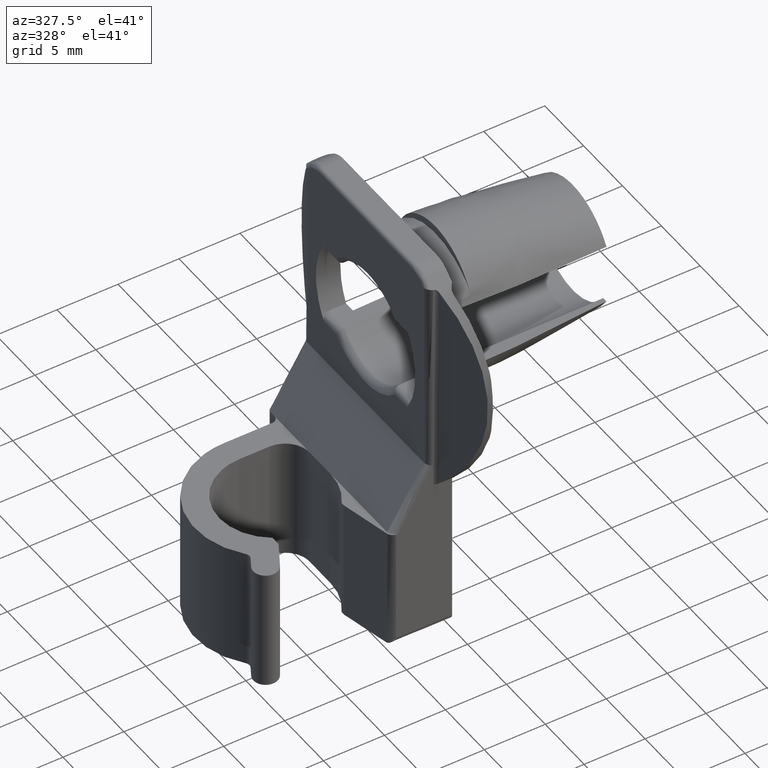
[diagram: clean part render]
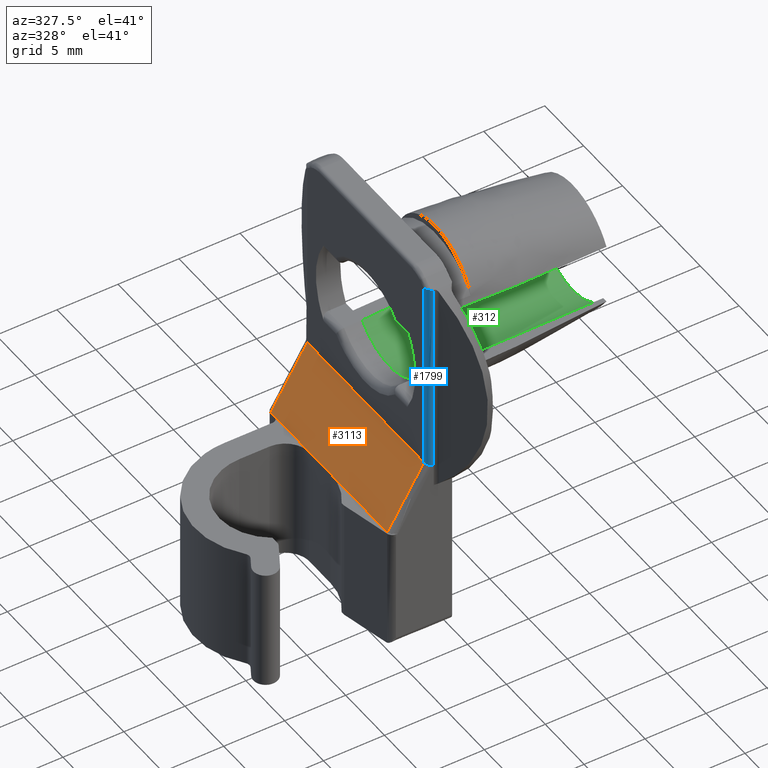
[diagram: same view with three faces highlighted in distinct colors, each labeled with its STEP entity id]
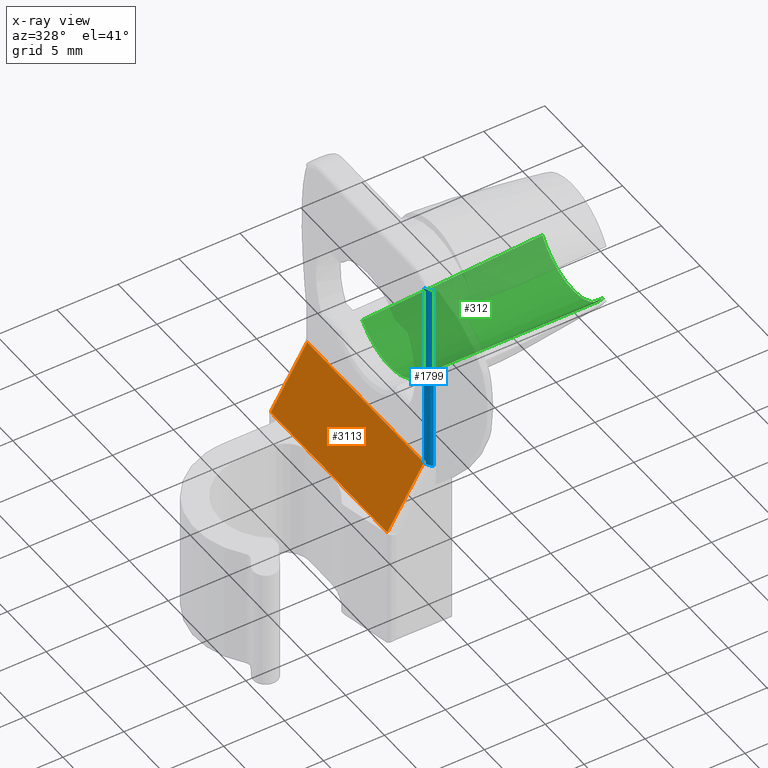
[diagram: x-ray of the same camera — body ghosted, the three highlighted faces saturated]
A machine part, auxiliary view with three faces highlighted in distinct colors.
The next image is the same camera in x-ray (body ghosted, the three faces saturated) — at least one of them is partly hidden behind the body in this view.
Their STEP definitions:

[orange] entity #3113 — the highlighted face is a freeform B-spline surface patch.
#1770=CARTESIAN_POINT('',(-2.0,-7.500000000000000,-7.0));
#1771=VERTEX_POINT('',#1770);
#2759=CARTESIAN_POINT('',(-4.999999000000000,-7.500000000000000,-12.000002000000000));
#2760=VERTEX_POINT('',#2759);
#2761=CARTESIAN_POINT('',(-4.999999000000000,-7.500000000000000,-12.000002000000000));
#2762=CARTESIAN_POINT('',(-2.0,-7.500000000000000,-7.0));
#2763=QUASI_UNIFORM_CURVE('',1,(#2761,#2762),.UNSPECIFIED.,.F.,.U.);
#2764=EDGE_CURVE('',#2760,#1771,#2763,.T.);
#2838=CARTESIAN_POINT('',(-4.999999000000000,7.500002000000000,-12.000002000000000));
#2839=VERTEX_POINT('',#2838);
#2847=CARTESIAN_POINT('',(-2.0,7.500002000000000,-7.0));
#2848=VERTEX_POINT('',#2847);
#2849=CARTESIAN_POINT('',(-2.0,7.500002000000000,-7.0));
#2850=CARTESIAN_POINT('',(-4.999999000000000,7.500002000000000,-12.000002000000000));
#2851=QUASI_UNIFORM_CURVE('',1,(#2849,#2850),.UNSPECIFIED.,.F.,.U.);
#2852=EDGE_CURVE('',#2848,#2839,#2851,.T.);
#3073=CARTESIAN_POINT('',(-5.149848916073576,-8.249250070827085,-12.249752043272579));
#3074=CARTESIAN_POINT('',(-1.850149976638106,-8.249250070827085,-6.750249777913407));
#3075=CARTESIAN_POINT('',(-5.149848916073576,8.249252473158492,-12.249752043272579));
#3076=CARTESIAN_POINT('',(-1.850149976638106,8.249252473158492,-6.750249777913407));
#3077=B_SPLINE_SURFACE_WITH_KNOTS('',1,1,((#3073,#3075),(#3074,#3076)),.UNSPECIFIED.,.F.,.F.,.U.,(2,2),(2,2),(0.0,6.413465386014200),(0.0,16.498502543985580),.UNSPECIFIED.);
#3078=CARTESIAN_POINT('',(-4.999999000000000,-0.231143668836476,-12.000002000000000));
#3079=VERTEX_POINT('',#3078);
#3080=CARTESIAN_POINT('',(-4.999999000000000,-7.500000000000000,-12.000002000000000));
#3081=CARTESIAN_POINT('',(-4.999999000000000,-0.231143668836476,-12.000002000000000));
#3082=QUASI_UNIFORM_CURVE('',1,(#3080,#3081),.UNSPECIFIED.,.F.,.U.);
#3083=EDGE_CURVE('',#2760,#3079,#3082,.T.);
#3084=ORIENTED_EDGE('',*,*,#3083,.F.);
#3085=ORIENTED_EDGE('',*,*,#2764,.T.);
#3086=CARTESIAN_POINT('',(-2.0,-7.500000000000000,-7.0));
#3087=CARTESIAN_POINT('',(-2.0,7.500002000000000,-7.0));
#3088=QUASI_UNIFORM_CURVE('',1,(#3086,#3087),.UNSPECIFIED.,.F.,.U.);
#3089=EDGE_CURVE('',#1771,#2848,#3088,.T.);
#3090=ORIENTED_EDGE('',*,*,#3089,.T.);
#3091=ORIENTED_EDGE('',*,*,#2852,.T.);
#3092=CARTESIAN_POINT('',(-4.999999000000000,6.990102990150830,-12.000001999999959));
#3093=VERTEX_POINT('',#3092);
#3094=CARTESIAN_POINT('',(-4.999999000000000,6.990102990150830,-12.000001999999959));
#3095=CARTESIAN_POINT('',(-4.999999000000000,7.500002000000000,-12.000002000000000));
#3096=QUASI_UNIFORM_CURVE('',1,(#3094,#3095),.UNSPECIFIED.,.F.,.U.);
#3097=EDGE_CURVE('',#3093,#2839,#3096,.T.);
#3098=ORIENTED_EDGE('',*,*,#3097,.F.);
#3099=CARTESIAN_POINT('',(-4.999999000000000,2.519798747344205,-12.000002000000000));
#3100=VERTEX_POINT('',#3099);
#3101=CARTESIAN_POINT('',(-4.999999000000000,2.519798747344205,-12.000002000000000));
#3102=CARTESIAN_POINT('',(-4.999999000000000,6.990102990150830,-12.000001999999959));
#3103=QUASI_UNIFORM_CURVE('',1,(#3101,#3102),.UNSPECIFIED.,.F.,.U.);
#3104=EDGE_CURVE('',#3100,#3093,#3103,.T.);
#3105=ORIENTED_EDGE('',*,*,#3104,.F.);
#3106=CARTESIAN_POINT('',(-4.999999000000000,-0.231143668836476,-12.000002000000000));
#3107=CARTESIAN_POINT('',(-4.999999000000000,2.519798747344205,-12.000002000000000));
#3108=QUASI_UNIFORM_CURVE('',1,(#3106,#3107),.UNSPECIFIED.,.F.,.U.);
#3109=EDGE_CURVE('',#3079,#3100,#3108,.T.);
#3110=ORIENTED_EDGE('',*,*,#3109,.F.);
#3111=EDGE_LOOP('',(#3084,#3085,#3090,#3091,#3098,#3105,#3110));
#3112=FACE_OUTER_BOUND('',#3111,.T.);
#3113=ADVANCED_FACE('',(#3112),#3077,.T.);

[blue] entity #1799 — the highlighted face is a freeform B-spline surface patch.
#1500=CARTESIAN_POINT('',(-2.0,-7.500000000000000,8.979973819561490));
#1501=VERTEX_POINT('',#1500);
#1509=CARTESIAN_POINT('',(-1.700000000000035,-7.958257569495560,8.981428865028970));
#1510=VERTEX_POINT('',#1509);
#1511=CARTESIAN_POINT('',(-1.700000000000035,-7.958257569495560,8.981428865028970));
#1512=CARTESIAN_POINT('',(-1.742638700110575,-7.939648515134503,8.997917961580935));
#1513=CARTESIAN_POINT('',(-1.783166168486591,-7.914973912926409,9.007839338882073));
#1514=CARTESIAN_POINT('',(-1.839390695883091,-7.867981741930494,9.016130929372279));
#1515=CARTESIAN_POINT('',(-1.857002589450974,-7.850915788078226,9.017698664751492));
#1516=CARTESIAN_POINT('',(-1.889406799123095,-7.814571270134397,9.018916279774185));
#1517=CARTESIAN_POINT('',(-1.904315178900538,-7.795185388874246,9.018575297671507));
#1518=CARTESIAN_POINT('',(-1.944850863752284,-7.733513211180227,9.015229817747709));
#1519=CARTESIAN_POINT('',(-1.965223294202495,-7.689597848380754,9.010081066909008));
#1520=CARTESIAN_POINT('',(-1.986129777658332,-7.619469048998807,8.999927875328442));
#1521=CARTESIAN_POINT('',(-1.991310984507412,-7.595878800243825,8.996197694985364));
#1522=CARTESIAN_POINT('',(-1.996514032668366,-7.560154985846050,8.990295468841920));
#1523=CARTESIAN_POINT('',(-1.997818257198600,-7.548190441865918,8.988276267907477));
#1524=CARTESIAN_POINT('',(-1.999562282396368,-7.524142532891470,8.984164825070335));
#1525=CARTESIAN_POINT('',(-2.0,-7.511937759567769,8.982049737034574));
#1526=CARTESIAN_POINT('',(-2.0,-7.500000000000000,8.979973819561490));
#1527=B_SPLINE_CURVE_WITH_KNOTS('',3,(#1511,#1512,#1513,#1514,#1515,#1516,#1517,#1518,#1519,#1520,#1521,#1522,#1523,#1524,#1525,#1526),.UNSPECIFIED.,.F.,.U.,(4,2,2,2,2,2,2,4),(0.0,0.249999999999997,0.374999999999996,0.499999999999995,0.749999999999997,0.874999999999999,0.937500000000000,1.0),.UNSPECIFIED.);
#1528=EDGE_CURVE('',#1510,#1501,#1527,.T.);
#1746=CARTESIAN_POINT('',(-1.486911525846009,-7.999828662487778,-7.542418268452675));
#1747=CARTESIAN_POINT('',(-1.486911525846009,-7.999828662487778,9.432587559657449));
#1748=CARTESIAN_POINT('',(-2.032378794297004,-8.014112225598053,-7.542418268452675));
#1749=CARTESIAN_POINT('',(-2.032378794297004,-8.014112225598053,9.432587559657449));
#1750=CARTESIAN_POINT('',(-1.999067399210937,-7.469475730232626,-7.542418268452675));
#1751=CARTESIAN_POINT('',(-1.999067399210937,-7.469475730232626,9.432587559657449));
#1759=(BOUNDED_SURFACE()B_SPLINE_SURFACE(1,2,((#1746,#1748,#1750),(#1747,#1749,#1751)),.UNSPECIFIED.,.F.,.F.,.U.)B_SPLINE_SURFACE_WITH_KNOTS((2,2),(3,3),(0.0,16.975005828110120),(0.0,1.0),.UNSPECIFIED.)GEOMETRIC_REPRESENTATION_ITEM()RATIONAL_B_SPLINE_SURFACE(((1.0,0.675590207615660,1.0),(1.0,0.675590207615660,1.0)))REPRESENTATION_ITEM('')SURFACE());
#1760=CARTESIAN_POINT('',(-1.499999999999946,-8.0,8.944267885076400));
#1761=VERTEX_POINT('',#1760);
#1762=CARTESIAN_POINT('',(-1.700000000000035,-7.958257569495560,8.981428865028970));
#1763=CARTESIAN_POINT('',(-1.639934272517322,-7.985236659927516,8.957448072561832));
#1764=CARTESIAN_POINT('',(-1.570066955137789,-7.999787295992033,8.944494363881674));
#1765=CARTESIAN_POINT('',(-1.499999999999946,-8.0,8.944267885076400));
#1766=B_SPLINE_CURVE_WITH_KNOTS('',3,(#1762,#1763,#1764,#1765),.UNSPECIFIED.,.F.,.U.,(4,4),(9.761826E-009,0.210155927387111),.UNSPECIFIED.);
#1767=EDGE_CURVE('',#1510,#1761,#1766,.T.);
#1768=ORIENTED_EDGE('',*,*,#1767,.F.);
#1769=ORIENTED_EDGE('',*,*,#1528,.T.);
#1770=CARTESIAN_POINT('',(-2.0,-7.500000000000000,-7.0));
#1771=VERTEX_POINT('',#1770);
#1772=CARTESIAN_POINT('',(-2.0,-7.500000000000000,-7.0));
#1773=CARTESIAN_POINT('',(-2.0,-7.500000000000000,8.979973819561490));
#1774=QUASI_UNIFORM_CURVE('',1,(#1772,#1773),.UNSPECIFIED.,.F.,.U.);
#1775=EDGE_CURVE('',#1771,#1501,#1774,.T.);
#1776=ORIENTED_EDGE('',*,*,#1775,.F.);
#1777=CARTESIAN_POINT('',(-1.499999999999890,-8.0,-7.138491895386400));
#1778=VERTEX_POINT('',#1777);
#1779=CARTESIAN_POINT('',(-1.499999999999890,-8.0,-7.138491895386400));
#1780=CARTESIAN_POINT('',(-2.000000000000000,-8.0,-7.0));
#1781=CARTESIAN_POINT('',(-2.0,-7.500000000000000,-6.999999999999998));
#1789=(BOUNDED_CURVE()B_SPLINE_CURVE(2,(#1779,#1780,#1781),.UNSPECIFIED.,.F.,.U.)CURVE()GEOMETRIC_REPRESENTATION_ITEM()QUASI_UNIFORM_CURVE()RATIONAL_B_SPLINE_CURVE((1.0,0.707106781186548,1.0))REPRESENTATION_ITEM(''));
#1790=EDGE_CURVE('',#1778,#1771,#1789,.T.);
#1791=ORIENTED_EDGE('',*,*,#1790,.F.);
#1792=CARTESIAN_POINT('',(-1.499999999999946,-8.0,8.944267885076400));
#1793=CARTESIAN_POINT('',(-1.499999999999890,-8.0,-7.138491895386400));
#1794=QUASI_UNIFORM_CURVE('',1,(#1792,#1793),.UNSPECIFIED.,.F.,.U.);
#1795=EDGE_CURVE('',#1761,#1778,#1794,.T.);
#1796=ORIENTED_EDGE('',*,*,#1795,.F.);
#1797=EDGE_LOOP('',(#1768,#1769,#1776,#1791,#1796));
#1798=FACE_OUTER_BOUND('',#1797,.T.);
#1799=ADVANCED_FACE('',(#1798),#1759,.T.);

[green] entity #312 — the highlighted face is a freeform B-spline surface patch.
#159=CARTESIAN_POINT('',(1.785239E-015,3.552822983207792,-3.0));
#160=VERTEX_POINT('',#159);
#166=CARTESIAN_POINT('',(15.000000000000551,3.920777984023020,-2.500000000000080));
#167=VERTEX_POINT('',#166);
#168=CARTESIAN_POINT('',(15.000000000000551,3.920777984023020,-2.500000000000080));
#169=CARTESIAN_POINT('',(7.130737690549308,3.753526215036378,-2.762308743648403));
#170=CARTESIAN_POINT('',(1.785239E-015,3.552822983207792,-3.0));
#178=(BOUNDED_CURVE()B_SPLINE_CURVE(2,(#168,#169,#170),.UNSPECIFIED.,.F.,.U.)CURVE()GEOMETRIC_REPRESENTATION_ITEM()QUASI_UNIFORM_CURVE()RATIONAL_B_SPLINE_CURVE((1.0,0.997769531350117,1.0))REPRESENTATION_ITEM(''));
#179=EDGE_CURVE('',#167,#160,#178,.T.);
#213=CARTESIAN_POINT('',(15.000000000000551,-3.920777984023020,-2.500000000000080));
#214=VERTEX_POINT('',#213);
#220=CARTESIAN_POINT('',(1.785239E-015,-3.552822983207575,-3.0));
#221=VERTEX_POINT('',#220);
#222=CARTESIAN_POINT('',(1.785239E-015,-3.552822983207575,-3.0));
#223=CARTESIAN_POINT('',(7.130737690549281,-3.753526215036263,-2.762308743648404));
#224=CARTESIAN_POINT('',(15.000000000000551,-3.920777984023020,-2.500000000000080));
#232=(BOUNDED_CURVE()B_SPLINE_CURVE(2,(#222,#223,#224),.UNSPECIFIED.,.F.,.U.)CURVE()GEOMETRIC_REPRESENTATION_ITEM()QUASI_UNIFORM_CURVE()RATIONAL_B_SPLINE_CURVE((1.0,0.997769531350127,1.0))REPRESENTATION_ITEM(''));
#233=EDGE_CURVE('',#221,#214,#232,.T.);
#260=CARTESIAN_POINT('',(-0.375000000000012,3.986778466165288,-2.393344409340353));
#261=CARTESIAN_POINT('',(15.384375000000560,3.986778466165288,-2.393344409340353));
#262=CARTESIAN_POINT('',(-0.375000000000012,-0.243443456152162,-9.439951492373510));
#263=CARTESIAN_POINT('',(15.384375000000563,-0.243443456152162,-9.439951492373510));
#264=CARTESIAN_POINT('',(-0.375000000000012,-4.104839273311391,-2.184672639156811));
#265=CARTESIAN_POINT('',(15.384375000000560,-4.104839273311391,-2.184672639156811));
#273=(BOUNDED_SURFACE()B_SPLINE_SURFACE(1,2,((#260,#262,#264),(#261,#263,#265)),.UNSPECIFIED.,.F.,.F.,.U.)B_SPLINE_SURFACE_WITH_KNOTS((2,2),(3,3),(0.0,15.759375000000579),(0.0,10.847199399183831),.UNSPECIFIED.)GEOMETRIC_REPRESENTATION_ITEM()RATIONAL_B_SPLINE_SURFACE(((1.0,0.492423560103467,1.0),(1.0,0.492423560103467,1.0)))REPRESENTATION_ITEM('')SURFACE());
#274=CARTESIAN_POINT('',(15.000000000000551,-3.920777984023020,-2.500000000000080));
#275=CARTESIAN_POINT('',(15.000000000000560,-3.796695308271235,-2.694608587233985));
#276=CARTESIAN_POINT('',(15.000000000000499,-3.453847533258407,-3.153140996823836));
#277=CARTESIAN_POINT('',(15.000000000000570,-2.869699933245460,-3.691443314124618));
#278=CARTESIAN_POINT('',(15.000000000000520,-2.211079190052928,-4.108216853961864));
#279=CARTESIAN_POINT('',(15.000000000000609,-1.555975964725122,-4.403321248699762));
#280=CARTESIAN_POINT('',(15.000000000000449,-0.908121998828184,-4.577433809773309));
#281=CARTESIAN_POINT('',(15.000000000000780,-0.171110268379923,-4.664475412019734));
#282=CARTESIAN_POINT('',(15.000000000000460,0.511827675186375,-4.643058381619610));
#283=CARTESIAN_POINT('',(15.000000000000620,1.276305850222438,-4.491322404583626));
#284=CARTESIAN_POINT('',(15.000000000000480,1.951413090544584,-4.242839222997829));
#285=CARTESIAN_POINT('',(15.000000000000790,2.651778058738344,-3.848027366266445));
#286=CARTESIAN_POINT('',(14.999999999999989,3.331945867871046,-3.291489886797152));
#287=CARTESIAN_POINT('',(15.000000000001069,3.737956089597213,-2.786830374976081));
#288=CARTESIAN_POINT('',(15.000000000000551,3.920777984023020,-2.500000000000080));
#289=B_SPLINE_CURVE_WITH_KNOTS('',3,(#274,#275,#276,#277,#278,#279,#280,#281,#282,#283,#284,#285,#286,#287,#288),.UNSPECIFIED.,.F.,.U.,(4,1,1,1,1,1,1,1,1,1,1,1,4),(0.000000042931395,0.692407721580210,1.712832500801860,2.368813707231106,3.024798565716176,3.862992434943695,4.373210398653934,5.247827899975788,5.903807911377886,6.705561372601446,7.397989249031149,8.309070753563450,9.329479772369769),.UNSPECIFIED.);
#290=EDGE_CURVE('',#214,#167,#289,.T.);
#291=ORIENTED_EDGE('',*,*,#290,.T.);
#292=ORIENTED_EDGE('',*,*,#179,.T.);
#293=CARTESIAN_POINT('',(1.785239E-015,3.552822983207792,-3.0));
#294=CARTESIAN_POINT('',(1.785239E-015,3.410166055743132,-3.168955437259511));
#295=CARTESIAN_POINT('',(1.785239E-015,3.056487204366650,-3.531828626592718));
#296=CARTESIAN_POINT('',(1.785239E-015,2.358556978751109,-4.046372633691844));
#297=CARTESIAN_POINT('',(1.785239E-015,1.548438464067811,-4.415909751056324));
#298=CARTESIAN_POINT('',(1.785239E-015,0.736819355969223,-4.609636665585057));
#299=CARTESIAN_POINT('',(1.785239E-015,0.031701882997271,-4.667247288303106));
#300=CARTESIAN_POINT('',(1.785239E-015,-0.726820334022639,-4.615658707178672));
#301=CARTESIAN_POINT('',(1.785239E-015,-1.415563775600560,-4.448728612034175));
#302=CARTESIAN_POINT('',(1.785239E-015,-2.108029350329050,-4.163573457726848));
#303=CARTESIAN_POINT('',(1.785239E-015,-2.825751577824569,-3.736622671376524));
#304=CARTESIAN_POINT('',(1.785239E-015,-3.308319514144518,-3.289689853769183));
#305=CARTESIAN_POINT('',(1.785239E-015,-3.552822983207575,-3.0));
#306=B_SPLINE_CURVE_WITH_KNOTS('',3,(#293,#294,#295,#296,#297,#298,#299,#300,#301,#302,#303,#304,#305),.UNSPECIFIED.,.F.,.U.,(4,1,1,1,1,1,1,1,1,1,4),(0.000000030843951,0.663382836520028,1.516302445832880,2.590362109954682,3.316931274260908,4.011910321160808,4.706860368994013,5.591378722671610,6.128405315438226,6.949742703448489,8.086966946954068),.UNSPECIFIED.);
#307=EDGE_CURVE('',#160,#221,#306,.T.);
#308=ORIENTED_EDGE('',*,*,#307,.T.);
#309=ORIENTED_EDGE('',*,*,#233,.T.);
#310=EDGE_LOOP('',(#291,#292,#308,#309));
#311=FACE_OUTER_BOUND('',#310,.T.);
#312=ADVANCED_FACE('',(#311),#273,.F.);